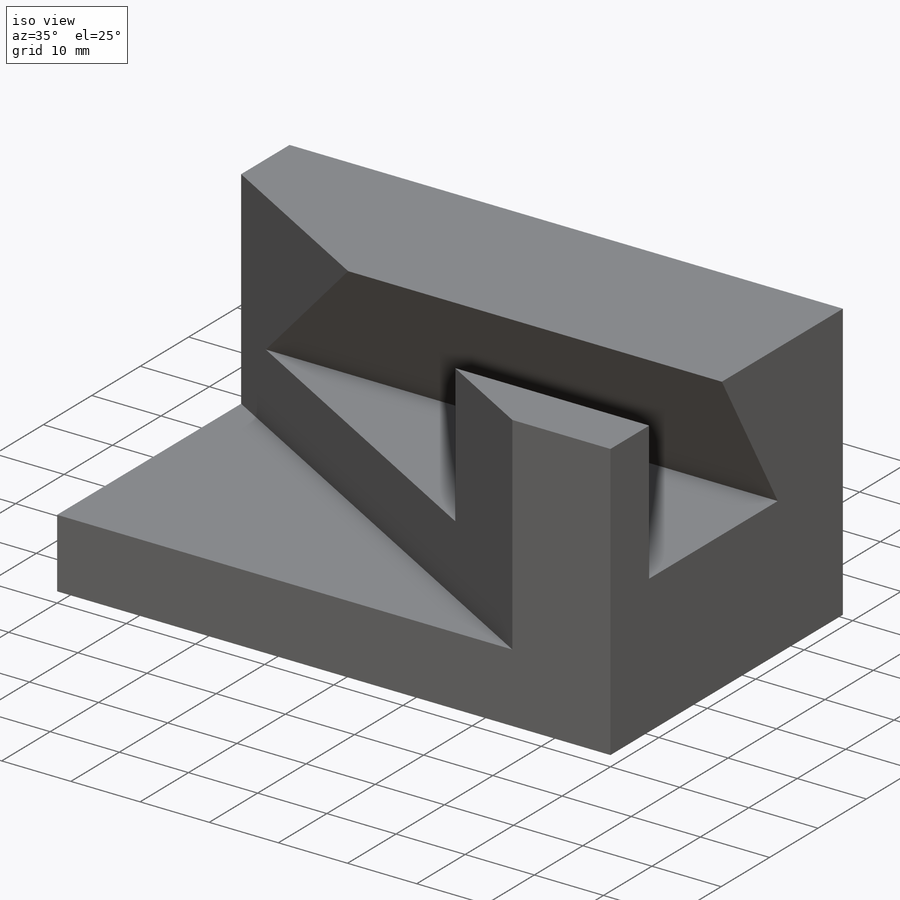
[diagram: iso view]
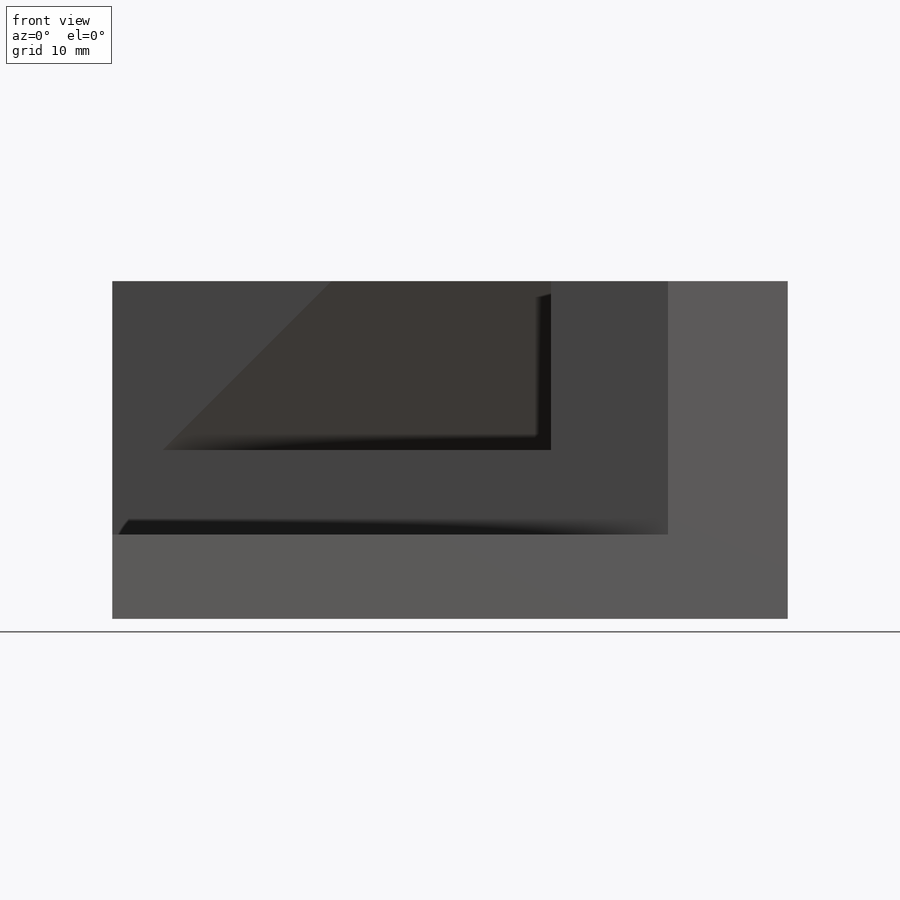
[diagram: front view]
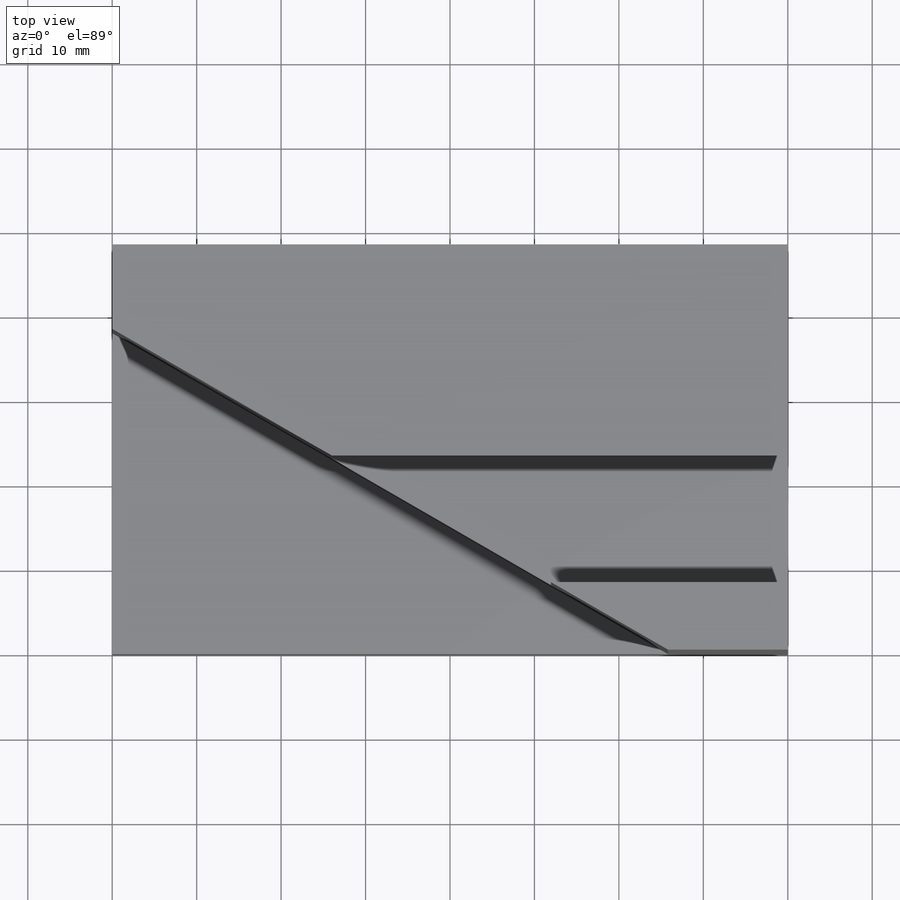
[diagram: top view]
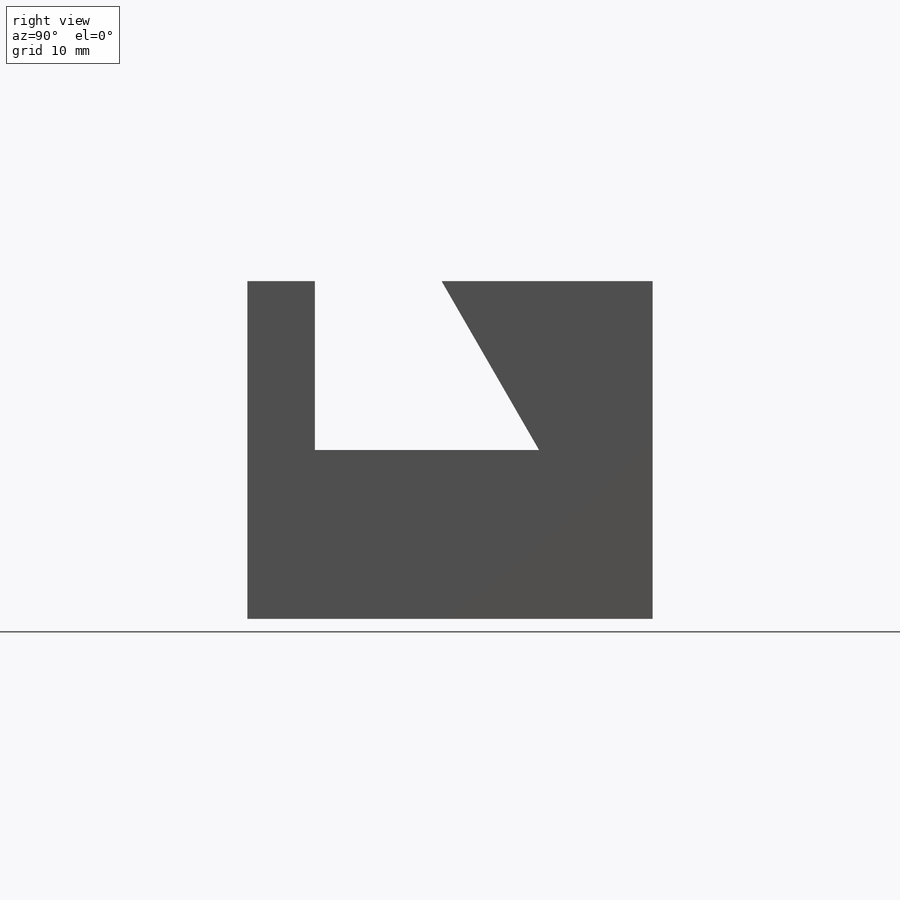
[diagram: right view]
SOLIDWORKS PART (.sldprt)
format: sldprt  version: not decoded by parser v0  size: 157,184 bytes
history: native  units: mm
features: plane x3, sketch x3, cut_extrude x2, material x1, extrude x1 (+8 scaffold rows collapsed)
feature tree (18):
  scaffold x8  (default folders/planes/origin — collapsed)
  material  "Material <nicht festgelegt>"
  plane  "Ebene vorne"
  plane  "Ebene oben"
  plane  "Ebene rechts"
  sketch  "Skizze1"  dims[D1=48.0mm D2=80.0mm]
  extrude  "Aufsatz-Linear austragen1"  Depth=40mm
  sketch  "Skizze2"  dims[c1.D1=~30.228276mm c2.D1=60.0deg c2.D2=38.0mm c2.D3=48.0mm c3.D3=90.0deg c4.D3=48.0mm c5.D3=90.0deg c6.D3=48.0mm c7.D3=90.0deg c8.D3=~65.817931mm]
  cut_extrude  "Schnitt-Linear austragen1"  Depth=30mm
  sketch  "Skizze4"  dims[c1.D1=15.0mm c1.D2=~32.667842mm c2.D2=60.0deg c2.D3=8.0mm c2.D4=20.0mm]
  cut_extrude  "Schnitt-Linear austragen2"  [1 undecoded]
decode coverage: 5 of 6 modeling features carry decoded parameters
note: ~ marks probable driven/reference dimensions
note: 1 parameter value undecoded
note: suppression state not decoded; provenance and decode notes live in map.json
